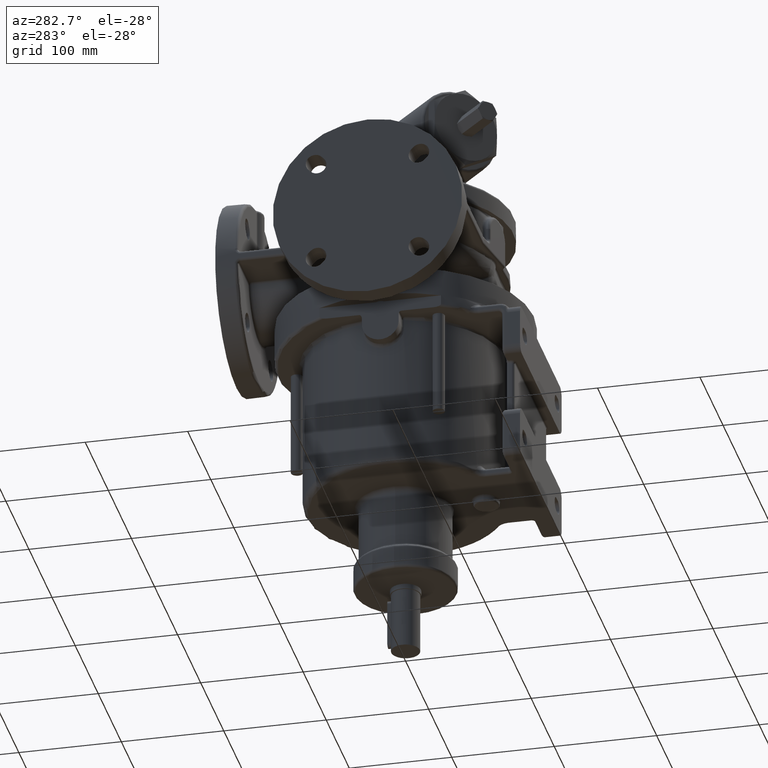
[diagram: clean part render]
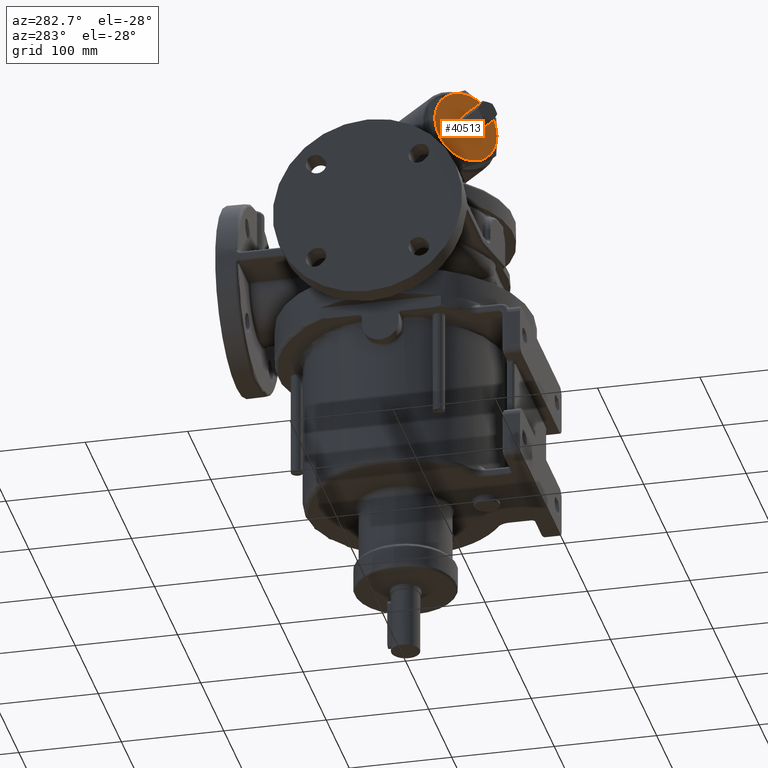
[diagram: same view with one face highlighted and labeled with its STEP entity id]
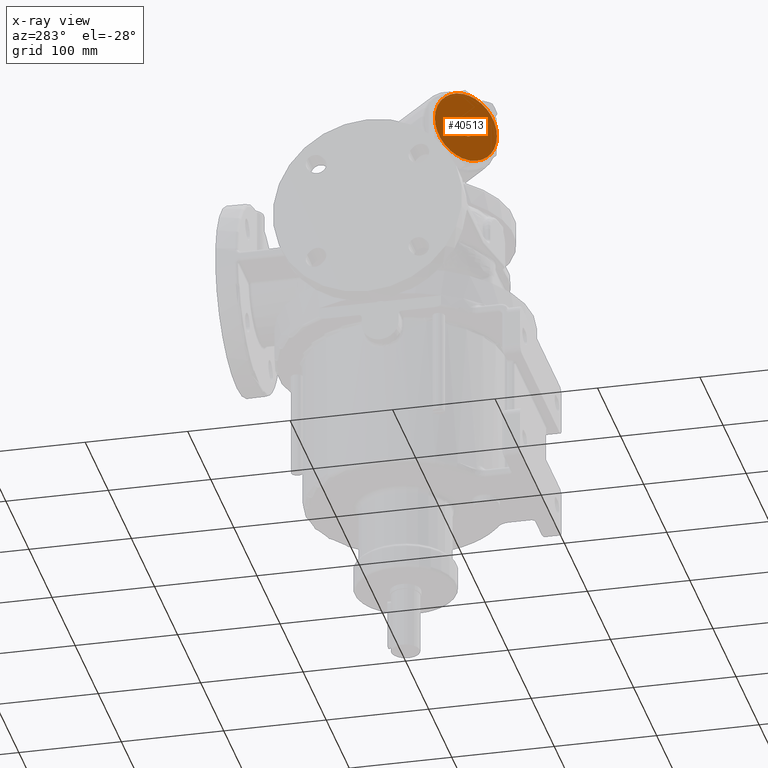
[diagram: x-ray of the same camera — body ghosted, the highlighted face saturated]
A machine part, auxiliary view. The second image highlights one B-rep face of the part: STEP entity #40513.
The next image is the same camera in x-ray: the body ghosted, the highlighted face saturated — about 0% of this face is hidden behind the body in this view.
In plain terms, the highlighted planar face has unit normal (-0.7071, -0.7071, 0).
Its self-contained STEP definition (entity closure, byte-faithful):
#6941=CARTESIAN_POINT('',(-8.838834764832E1,-6.363961030679E1,
1.666891108675E2));
#6967=CARTESIAN_POINT('',(-7.601397897755E1,-7.601397897755E1,1.97E2));
#6968=DIRECTION('',(7.071067811865E-1,7.071067811865E-1,0.E0));
#6969=DIRECTION('',(3.535533905933E-1,-3.535533905933E-1,8.660254037844E-1));
#6970=AXIS2_PLACEMENT_3D('',#6967,#6968,#6969);
#6972=CARTESIAN_POINT('',(-7.601397897755E1,-7.601397897755E1,1.97E2));
#6973=DIRECTION('',(7.071067811865E-1,7.071067811865E-1,0.E0));
#6974=DIRECTION('',(7.071067811865E-1,-7.071067811865E-1,0.E0));
#6975=AXIS2_PLACEMENT_3D('',#6972,#6973,#6974);
#6977=CARTESIAN_POINT('',(-7.601397897755E1,-7.601397897755E1,1.97E2));
#6978=DIRECTION('',(-7.071067811865E-1,-7.071067811865E-1,0.E0));
#6979=DIRECTION('',(-7.071067811865E-1,7.071067811865E-1,0.E0));
#6980=AXIS2_PLACEMENT_3D('',#6977,#6978,#6979);
#6982=CARTESIAN_POINT('',(-7.601397897755E1,-7.601397897755E1,1.97E2));
#6983=DIRECTION('',(-7.071067811865E-1,-7.071067811865E-1,0.E0));
#6984=DIRECTION('',(-3.535533905933E-1,3.535533905933E-1,8.660254037844E-1));
#6985=AXIS2_PLACEMENT_3D('',#6982,#6983,#6984);
#6987=CARTESIAN_POINT('',(-7.601397897755E1,-7.601397897755E1,1.97E2));
#6988=DIRECTION('',(-7.071067811865E-1,-7.071067811865E-1,0.E0));
#6989=DIRECTION('',(0.E0,0.E0,-1.E0));
#6990=AXIS2_PLACEMENT_3D('',#6987,#6988,#6989);
#6992=CARTESIAN_POINT('',(-7.601397897755E1,-7.601397897755E1,1.97E2));
#6993=DIRECTION('',(-7.071067811865E-1,-7.071067811865E-1,0.E0));
#6994=DIRECTION('',(0.E0,0.E0,1.E0));
#6995=AXIS2_PLACEMENT_3D('',#6992,#6993,#6994);
#6997=CARTESIAN_POINT('',(-7.601397897755E1,-7.601397897755E1,1.97E2));
#6998=DIRECTION('',(-7.071067811865E-1,-7.071067811865E-1,0.E0));
#6999=DIRECTION('',(3.535533905933E-1,-3.535533905933E-1,8.660254037844E-1));
#7000=AXIS2_PLACEMENT_3D('',#6997,#6998,#6999);
#7002=CARTESIAN_POINT('',(-8.838834764832E1,-6.363961030679E1,
2.273108891325E2));
#7080=CARTESIAN_POINT('',(-6.363961030679E1,-8.838834764832E1,
2.273108891325E2));
#7132=CARTESIAN_POINT('',(-5.126524163602E1,-1.007627163191E2,1.97E2));
#7158=CARTESIAN_POINT('',(-7.601397897755E1,-7.601397897755E1,1.97E2));
#7159=DIRECTION('',(-7.071067811865E-1,-7.071067811865E-1,0.E0));
#7160=DIRECTION('',(-3.535533905933E-1,3.535533905933E-1,-8.660254037844E-1));
#7161=AXIS2_PLACEMENT_3D('',#7158,#7159,#7160);
#7163=CARTESIAN_POINT('',(-6.363961030679E1,-8.838834764832E1,
1.666891108675E2));
#7215=CARTESIAN_POINT('',(-1.007627163191E2,-5.126524163602E1,1.97E2));
#22589=VERTEX_POINT('',#7163);
#22592=VERTEX_POINT('',#7132);
#22594=VERTEX_POINT('',#7080);
#22596=VERTEX_POINT('',#7215);
#22599=VERTEX_POINT('',#6941);
#22600=VERTEX_POINT('',#7002);
#22637=CARTESIAN_POINT('',(-7.601397897755E1,-7.601397897755E1,1.875E2));
#22638=CARTESIAN_POINT('',(-7.601397897755E1,-7.601397897755E1,2.065E2));
#22639=VERTEX_POINT('',#22637);
#22640=VERTEX_POINT('',#22638);
#40489=CARTESIAN_POINT('',(-7.601397897755E1,-7.601397897755E1,1.97E2));
#40490=DIRECTION('',(-7.071067811865E-1,-7.071067811865E-1,0.E0));
#40491=DIRECTION('',(0.E0,0.E0,-1.E0));
#40492=AXIS2_PLACEMENT_3D('',#40489,#40490,#40491);
#40493=PLANE('',#40492);
#40495=ORIENTED_EDGE('',*,*,#40494,.F.);
#40497=ORIENTED_EDGE('',*,*,#40496,.T.);
#40499=ORIENTED_EDGE('',*,*,#40498,.T.);
#40501=ORIENTED_EDGE('',*,*,#40500,.F.);
#40502=ORIENTED_EDGE('',*,*,#40483,.F.);
#40504=ORIENTED_EDGE('',*,*,#40503,.F.);
#40505=EDGE_LOOP('',(#40495,#40497,#40499,#40501,#40502,#40504));
#40506=FACE_OUTER_BOUND('',#40505,.F.);
#40508=ORIENTED_EDGE('',*,*,#40507,.T.);
#40510=ORIENTED_EDGE('',*,*,#40509,.T.);
#40511=EDGE_LOOP('',(#40508,#40510));
#40512=FACE_BOUND('',#40511,.F.);
#40513=ADVANCED_FACE('',(#40506,#40512),#40493,.T.);
#6971=CIRCLE('',#6970,3.5E1);
#6976=CIRCLE('',#6975,3.5E1);
#6981=CIRCLE('',#6980,3.5E1);
#6986=CIRCLE('',#6985,3.5E1);
#6991=CIRCLE('',#6990,9.5E0);
#6996=CIRCLE('',#6995,9.5E0);
#7001=CIRCLE('',#7000,3.5E1);
#7162=CIRCLE('',#7161,3.5E1);
#40483=EDGE_CURVE('',#22596,#22599,#6981,.T.);
#40494=EDGE_CURVE('',#22594,#22600,#7001,.T.);
#40496=EDGE_CURVE('',#22594,#22592,#6971,.T.);
#40498=EDGE_CURVE('',#22592,#22589,#6976,.T.);
#40500=EDGE_CURVE('',#22599,#22589,#7162,.T.);
#40503=EDGE_CURVE('',#22600,#22596,#6986,.T.);
#40507=EDGE_CURVE('',#22639,#22640,#6991,.T.);
#40509=EDGE_CURVE('',#22640,#22639,#6996,.T.);